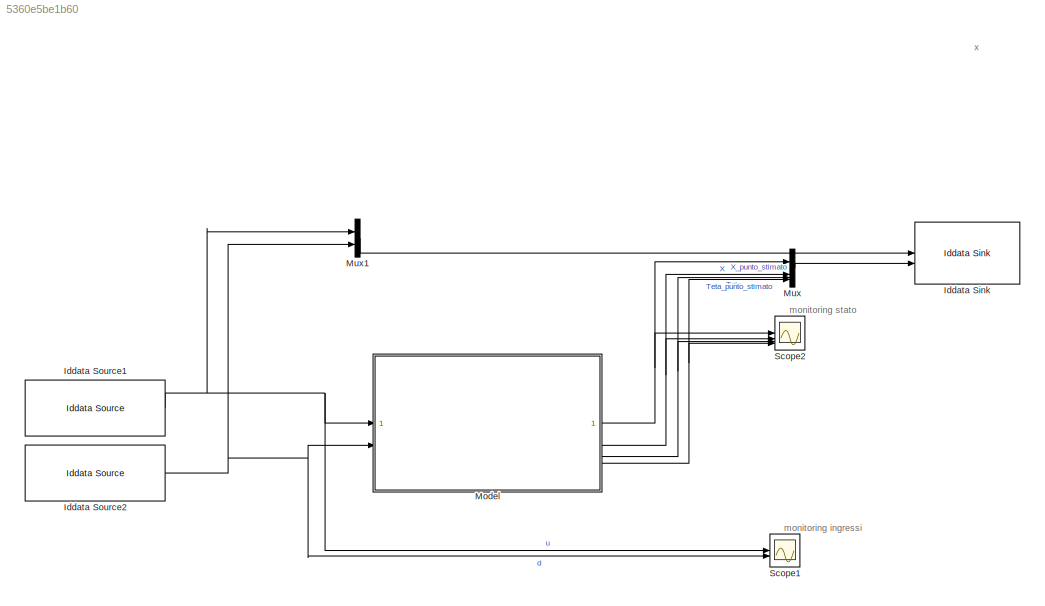
MODEL slx_5360e5be1b60
KIND model
CONFIG AbsTol = auto
CONFIG EnableMultiTasking = off
CONFIG FixedStep = auto
CONFIG MaxStep = auto
CONFIG MinStep = auto
CONFIG RelTol = 1e-3
CONFIG SampleTimeConstraint = Unconstrained
CONFIG SolverName = ode45
CONFIG StartTime = 0.0
CONFIG StopTime = 20
BLOCK [Reference] Iddata Sink  REF=slident/Iddata Sink  (lib defined in mdl_f7d4911ca73a)
  SourceBlock = slident/Iddata Sink
  SourceType = IDDATA Sink
BLOCK [Reference] Iddata Source1  REF=slident/Iddata Source  (lib defined in mdl_f7d4911ca73a)
  SourceBlock = slident/Iddata Source
  SourceType = Iddata InputOutput
BLOCK [Reference] Iddata Source2  REF=slident/Iddata Source  (lib defined in mdl_f7d4911ca73a)
  SourceBlock = slident/Iddata Source
  SourceType = Iddata InputOutput
BLOCK [ModelReference] Model
  ModelNameDialog = sistema_con_reazione_stato.slx
  ModelReferenceVersion = 9.56
BLOCK [Mux] Mux
  DisplayOption = bar
BLOCK [Mux] Mux1
  DisplayOption = bar
  Inputs = 2
BLOCK [Scope] Scope1
  ActiveDisplayString = 2
  ActiveDisplayYMaximum = 1.25
  ActiveDisplayYMinimum = -1.25
  DataLoggingVariableName = ScopeData1
  Floating = off
  GraphicalSettings = {"AxesScalingProperties":{"AlignXAxis":"Center","AlignYAxis":"Center","AutoScaleXAxisLimits":false,"AxesScaling":"Manual","AxesScalingNumUpdates":10,"ExpandOnly":true,"ScaleAxesLimitsAtStop":false,"XAxisDataRange":100,"YAxisDataRange":80},"DisplayProperties":{"ColorOrder":["auto","auto","auto","auto","auto","auto","auto","auto","auto","auto","auto","auto","auto","auto","auto","auto","auto","auto",...<+2241ch>
  LayoutDimensionsString = [2, 1]
  MultipleDisplayCache = [{"MaxYLimMag":1,"MaxYLimReal":0.26865671641791045,"MinYLimMag":0,"MinYLimReal":-1.0746268656716416,"PlotAsMagnitudePhase":false,"ShowGrid":true,"ShowLegend":true,"Title":"%<SignalLabel>","YLabel":""},{"MaxYLimMag":1.25,"MaxYLimReal":1.25,"MinYLimMag":0,"MinYLimReal":-1.25,"PlotAsMagnitudePhase":false,"ShowGrid":true,"ShowLegend":true,"Title":"%<SignalLabel>","YLabel":""}]
  NumInputPorts = 2
  ScopeFrameLocation = window
  ShowLegend = on
  WasSavedAsWebScope = on
  WindowPosition = [67.000000,38.000000,1300.000000,699.000000,]
BLOCK [Scope] Scope2
  ActiveDisplayString = 2
  ActiveDisplayYMaximum = 2.7041990741135846
  ActiveDisplayYMinimum = -2.7821327849378408
  DataLoggingVariableName = ScopeData2
  Floating = off
  GraphicalSettings = {"Style":{"BackgroundColor":[0.12941176470588237,0.12941176470588237,0.12941176470588237],"AxesColor":[0.07058823529411765,0.07058823529411765,0.07058823529411765],"LabelsColor":[0.8509803921568627,0.8509803921568627,0.8509803921568627],"PreserveColors":false,"Visible":[true,true,true,true],"LineStyle":["-","-","-","-"],"LineWidth":[1.5,1.5,1.5,1.5],"BarWidth":[0.9,0.9,0.9,0.9],"LineColor":[[1,0,0...<+3276ch>
  LayoutDimensionsString = [2, 2]
  MultipleDisplayCache = [{"MaxYLimMag":1.1869497512546872,"MaxYLimReal":1.1869497512546872,"MinYLimMag":0,"MinYLimReal":-0.74545269398004466,"PlotAsMagnitudePhase":false,"ShowGrid":true,"ShowLegend":true,"Title":"%<SignalLabel>","YLabel":""},{"MaxYLimMag":2.7821327849378408,"MaxYLimReal":2.7041990741135846,"MinYLimMag":0,"MinYLimReal":-2.7821327849378408,"PlotAsMagnitudePhase":false,"ShowGrid":true,"ShowLegend":true,"Tit...<+469ch>
  NumInputPorts = 4
  ScopeFrameLocation = window
  ShowLegend = on
  Visible = on
  WasSavedAsWebScope = on
  WindowPosition = [67.000000,1.000000,1300.000000,699.000000,]
ANNOTATION (root): monitoring ingressi
ANNOTATION (root): monitoring stato
ANNOTATION (root): x
NET Iddata Source1:1 -> Model:1, Mux1:1, Scope1:1
NET Iddata Source2:1 -> Model:2, Mux1:2, Scope1:2
NET Model:1 -> Mux:1, Scope2:1
NET Model:2 -> Mux:2, Scope2:2
NET Model:3 -> Mux:3, Scope2:3
NET Model:4 -> Mux:4, Scope2:4
LINE Mux1:1 -> Iddata Sink:1
LINE Mux:1 -> Iddata Sink:2
note: NET lines group one-source signal fan-out (src -> all destinations, sorted); 1:1 wires keep LINE
